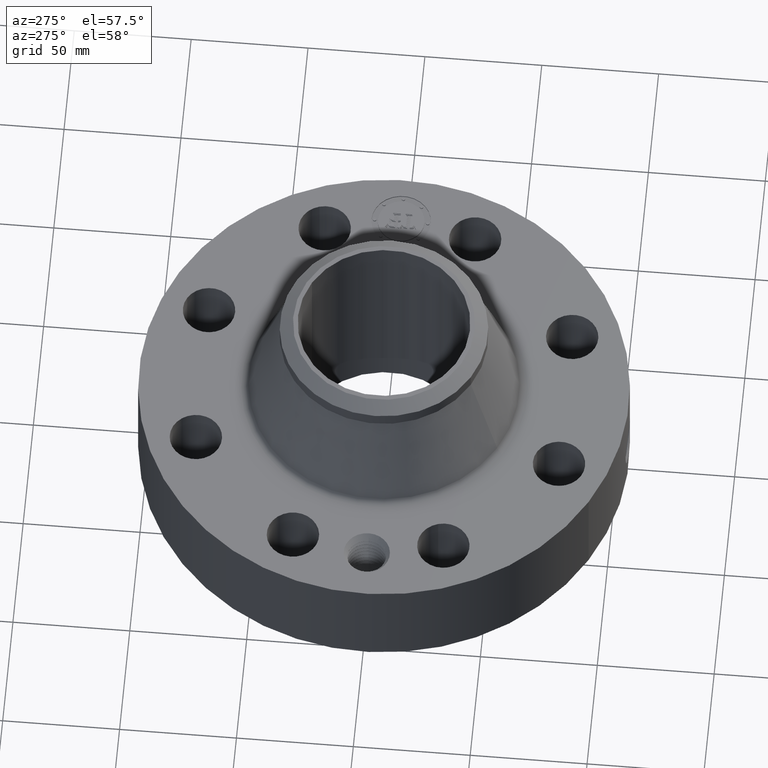
[diagram: clean part render]
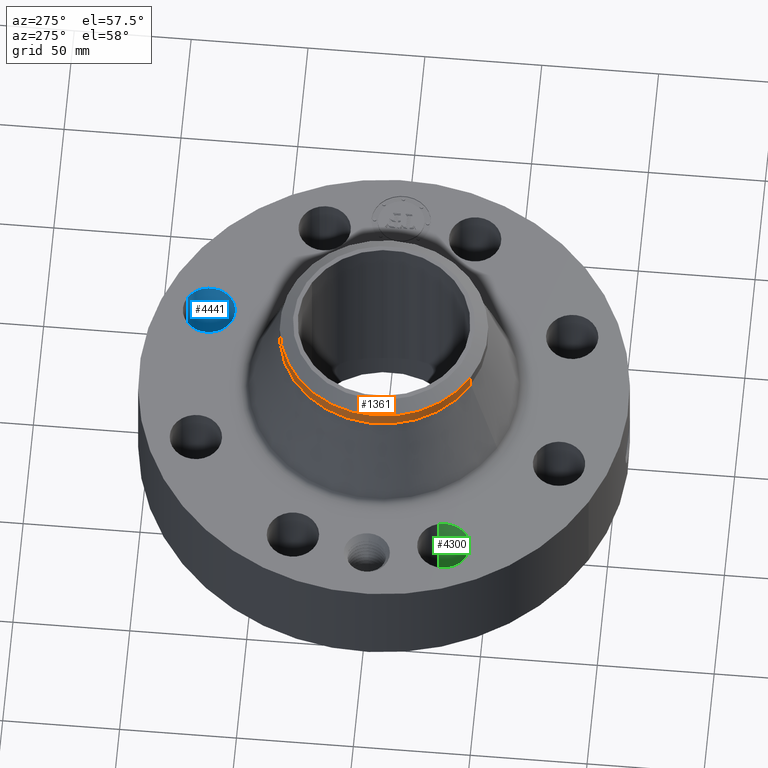
[diagram: same view with three faces highlighted in distinct colors, each labeled with its STEP entity id]
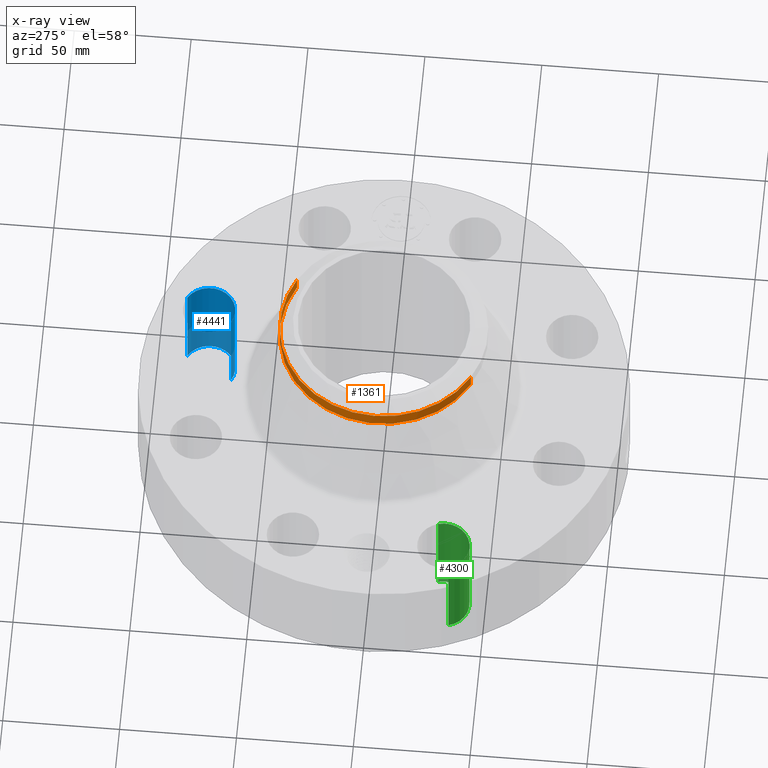
[diagram: x-ray of the same camera — body ghosted, the three highlighted faces saturated]
A machine part, auxiliary view with three faces highlighted in distinct colors.
The next image is the same camera in x-ray (body ghosted, the three faces saturated) — at least one of them is partly hidden behind the body in this view.
Their STEP definitions:

[orange] entity #1361 — the highlighted cylindrical surface (partial cylindrical patch) has radius 44.45 mm, axis along (0, 0, -1).
#969=AXIS2_PLACEMENT_3D('Circle Axis2P3D',#967,#968,$) ;
#996=AXIS2_PLACEMENT_3D('Circle Axis2P3D',#994,#995,$) ;
#1333=AXIS2_PLACEMENT_3D('Cylinder Axis2P3D',#1330,#1331,#1332) ;
#1344=AXIS2_PLACEMENT_3D('Circle Axis2P3D',#1342,#1343,$) ;
#964=CARTESIAN_POINT('Vertex',(-0.838994692561,1.53576948331,3.64222135149)) ;
#967=CARTESIAN_POINT('Axis2P3D Location',(0.,0.,3.64222135149)) ;
#971=CARTESIAN_POINT('Vertex',(-0.838994692561,-1.53576948331,3.64222135149)) ;
#991=CARTESIAN_POINT('Vertex',(0.838994692561,1.53576948331,3.64222135149)) ;
#994=CARTESIAN_POINT('Axis2P3D Location',(0.,0.,3.64222135149)) ;
#1330=CARTESIAN_POINT('Axis2P3D Location',(0.,0.,1.90600000001)) ;
#1335=CARTESIAN_POINT('Line Origine',(0.838994692561,1.53576948331,3.52411111527)) ;
#1339=CARTESIAN_POINT('Vertex',(0.838994692561,1.53576948331,3.40600087905)) ;
#1342=CARTESIAN_POINT('Axis2P3D Location',(0.,0.,3.40600087905)) ;
#1346=CARTESIAN_POINT('Vertex',(-0.838994692561,-1.53576948331,3.40600087905)) ;
#1349=CARTESIAN_POINT('Line Origine',(-0.838994692561,-1.53576948331,3.52411111527)) ;
#968=DIRECTION('Axis2P3D Direction',(0.,0.,-0.0393700787402)) ;
#995=DIRECTION('Axis2P3D Direction',(0.,0.,-0.0393700787402)) ;
#1331=DIRECTION('Axis2P3D Direction',(0.,0.,-0.0393700787402)) ;
#1332=DIRECTION('Axis2P3D XDirection',(0.0188750212049,0.0345504945626,0.)) ;
#1336=DIRECTION('Vector Direction',(0.,0.,-0.0393700787402)) ;
#1343=DIRECTION('Axis2P3D Direction',(0.,0.,-0.0393700787402)) ;
#1350=DIRECTION('Vector Direction',(0.,0.,-0.0393700787402)) ;
#1337=VECTOR('Line Direction',#1336,0.0393700787402) ;
#1351=VECTOR('Line Direction',#1350,0.0393700787402) ;
#1355=ORIENTED_EDGE('',*,*,#1341,.F.) ;
#1356=ORIENTED_EDGE('',*,*,#1348,.F.) ;
#1357=ORIENTED_EDGE('',*,*,#1353,.T.) ;
#1358=ORIENTED_EDGE('',*,*,#973,.F.) ;
#1359=ORIENTED_EDGE('',*,*,#998,.T.) ;
#1361=ADVANCED_FACE('PartBody',(#1360),#1334,.T.) ;
#970=CIRCLE('generated circle',#969,1.75000000001) ;
#997=CIRCLE('generated circle',#996,1.75000000001) ;
#1345=CIRCLE('generated circle',#1344,1.75000000001) ;
#1334=CYLINDRICAL_SURFACE('generated cylinder',#1333,1.75000000001) ;
#973=EDGE_CURVE('',#965,#972,#970,.F.) ;
#998=EDGE_CURVE('',#965,#992,#997,.T.) ;
#1341=EDGE_CURVE('',#1340,#992,#1338,.F.) ;
#1348=EDGE_CURVE('',#1347,#1340,#1345,.T.) ;
#1353=EDGE_CURVE('',#1347,#972,#1352,.F.) ;
#1354=EDGE_LOOP('',(#1355,#1356,#1357,#1358,#1359)) ;
#1360=FACE_OUTER_BOUND('',#1354,.T.) ;
#1338=LINE('Line',#1335,#1337) ;
#1352=LINE('Line',#1349,#1351) ;
#965=VERTEX_POINT('',#964) ;
#972=VERTEX_POINT('',#971) ;
#992=VERTEX_POINT('',#991) ;
#1340=VERTEX_POINT('',#1339) ;
#1347=VERTEX_POINT('',#1346) ;

[blue] entity #4441 — the highlighted cylindrical surface (edge-blend (fillet) strip) has radius 11.176 mm, axis along (0, 0, -1).
#3066=AXIS2_PLACEMENT_3D('Circle Axis2P3D',#3064,#3065,$) ;
#4402=AXIS2_PLACEMENT_3D('Cylinder Axis2P3D',#4399,#4400,#4401) ;
#4432=AXIS2_PLACEMENT_3D('Circle Axis2P3D',#4430,#4431,$) ;
#3064=CARTESIAN_POINT('Axis2P3D Location',(1.26668216113,3.05804125262,1.81200000001)) ;
#3068=CARTESIAN_POINT('Vertex',(1.47762939812,3.44417757986,1.81200000001)) ;
#3070=CARTESIAN_POINT('Vertex',(1.05573492415,2.67190492539,1.81200000001)) ;
#4399=CARTESIAN_POINT('Axis2P3D Location',(1.26668216113,3.05804125262,1.80806299213)) ;
#4404=CARTESIAN_POINT('Line Origine',(1.05573492415,2.67190492539,0.906000000004)) ;
#4408=CARTESIAN_POINT('Vertex',(1.05573492415,2.67190492539,0.)) ;
#4415=CARTESIAN_POINT('Vertex',(1.47762939812,3.44417757986,0.)) ;
#4418=CARTESIAN_POINT('Line Origine',(1.47762939812,3.44417757986,0.906000000004)) ;
#4430=CARTESIAN_POINT('Axis2P3D Location',(1.26668216113,3.05804125262,0.)) ;
#3065=DIRECTION('Axis2P3D Direction',(0.,0.,-0.0393700787402)) ;
#4400=DIRECTION('Axis2P3D Direction',(0.,0.,-0.0393700787402)) ;
#4401=DIRECTION('Axis2P3D XDirection',(0.0188750212049,0.0345504945626,0.)) ;
#4405=DIRECTION('Vector Direction',(0.,0.,-0.0393700787402)) ;
#4419=DIRECTION('Vector Direction',(0.,0.,-0.0393700787402)) ;
#4431=DIRECTION('Axis2P3D Direction',(0.,0.,-0.0393700787402)) ;
#4406=VECTOR('Line Direction',#4405,0.0393700787402) ;
#4420=VECTOR('Line Direction',#4419,0.0393700787402) ;
#4436=ORIENTED_EDGE('',*,*,#4422,.F.) ;
#4437=ORIENTED_EDGE('',*,*,#4434,.T.) ;
#4438=ORIENTED_EDGE('',*,*,#4410,.T.) ;
#4439=ORIENTED_EDGE('',*,*,#3072,.F.) ;
#4441=ADVANCED_FACE('PartBody',(#4440),#4403,.F.) ;
#3067=CIRCLE('generated circle',#3066,0.440000000002) ;
#4433=CIRCLE('generated circle',#4432,0.440000000002) ;
#4403=CYLINDRICAL_SURFACE('generated cylinder',#4402,0.440000000002) ;
#3072=EDGE_CURVE('',#3069,#3071,#3067,.T.) ;
#4410=EDGE_CURVE('',#4409,#3071,#4407,.F.) ;
#4422=EDGE_CURVE('',#4416,#3069,#4421,.F.) ;
#4434=EDGE_CURVE('',#4416,#4409,#4433,.T.) ;
#4435=EDGE_LOOP('',(#4436,#4437,#4438,#4439)) ;
#4440=FACE_OUTER_BOUND('',#4435,.T.) ;
#4407=LINE('Line',#4404,#4406) ;
#4421=LINE('Line',#4418,#4420) ;
#3069=VERTEX_POINT('',#3068) ;
#3071=VERTEX_POINT('',#3070) ;
#4409=VERTEX_POINT('',#4408) ;
#4416=VERTEX_POINT('',#4415) ;

[green] entity #4300 — the highlighted cylindrical surface (edge-blend (fillet) strip) has radius 11.176 mm, axis along (-0, 0, -1).
#3021=AXIS2_PLACEMENT_3D('Circle Axis2P3D',#3019,#3020,$) ;
#4273=AXIS2_PLACEMENT_3D('Cylinder Axis2P3D',#4270,#4271,#4272) ;
#4284=AXIS2_PLACEMENT_3D('Circle Axis2P3D',#4282,#4283,$) ;
#3014=CARTESIAN_POINT('Vertex',(-3.48024308982,-1.39055955484,1.81200000001)) ;
#3016=CARTESIAN_POINT('Vertex',(-2.63583941543,-1.14280476743,1.81200000001)) ;
#3019=CARTESIAN_POINT('Axis2P3D Location',(-3.05804125262,-1.26668216113,1.81200000001)) ;
#4270=CARTESIAN_POINT('Axis2P3D Location',(-3.05804125262,-1.26668216113,1.80806299213)) ;
#4275=CARTESIAN_POINT('Line Origine',(-2.63583941543,-1.14280476743,0.906000000004)) ;
#4279=CARTESIAN_POINT('Vertex',(-2.63583941543,-1.14280476743,0.)) ;
#4282=CARTESIAN_POINT('Axis2P3D Location',(-3.05804125262,-1.26668216113,0.)) ;
#4286=CARTESIAN_POINT('Vertex',(-3.48024308982,-1.39055955484,0.)) ;
#4289=CARTESIAN_POINT('Line Origine',(-3.48024308982,-1.39055955484,0.906000000004)) ;
#3020=DIRECTION('Axis2P3D Direction',(0.,0.,-0.0393700787402)) ;
#4271=DIRECTION('Axis2P3D Direction',(-0.,0.,-0.0393700787402)) ;
#4272=DIRECTION('Axis2P3D XDirection',(-0.0377775444876,-0.0110842335096,0.)) ;
#4276=DIRECTION('Vector Direction',(0.,0.,-0.0393700787402)) ;
#4283=DIRECTION('Axis2P3D Direction',(-0.,0.,-0.0393700787402)) ;
#4290=DIRECTION('Vector Direction',(0.,0.,-0.0393700787402)) ;
#4277=VECTOR('Line Direction',#4276,0.0393700787402) ;
#4291=VECTOR('Line Direction',#4290,0.0393700787402) ;
#4295=ORIENTED_EDGE('',*,*,#4281,.F.) ;
#4296=ORIENTED_EDGE('',*,*,#4288,.T.) ;
#4297=ORIENTED_EDGE('',*,*,#4293,.T.) ;
#4298=ORIENTED_EDGE('',*,*,#3023,.F.) ;
#4300=ADVANCED_FACE('PartBody',(#4299),#4274,.F.) ;
#3022=CIRCLE('generated circle',#3021,0.440000000002) ;
#4285=CIRCLE('generated circle',#4284,0.440000000002) ;
#4274=CYLINDRICAL_SURFACE('generated cylinder',#4273,0.440000000002) ;
#3023=EDGE_CURVE('',#3017,#3015,#3022,.T.) ;
#4281=EDGE_CURVE('',#4280,#3017,#4278,.F.) ;
#4288=EDGE_CURVE('',#4280,#4287,#4285,.T.) ;
#4293=EDGE_CURVE('',#4287,#3015,#4292,.F.) ;
#4294=EDGE_LOOP('',(#4295,#4296,#4297,#4298)) ;
#4299=FACE_OUTER_BOUND('',#4294,.T.) ;
#4278=LINE('Line',#4275,#4277) ;
#4292=LINE('Line',#4289,#4291) ;
#3015=VERTEX_POINT('',#3014) ;
#3017=VERTEX_POINT('',#3016) ;
#4280=VERTEX_POINT('',#4279) ;
#4287=VERTEX_POINT('',#4286) ;